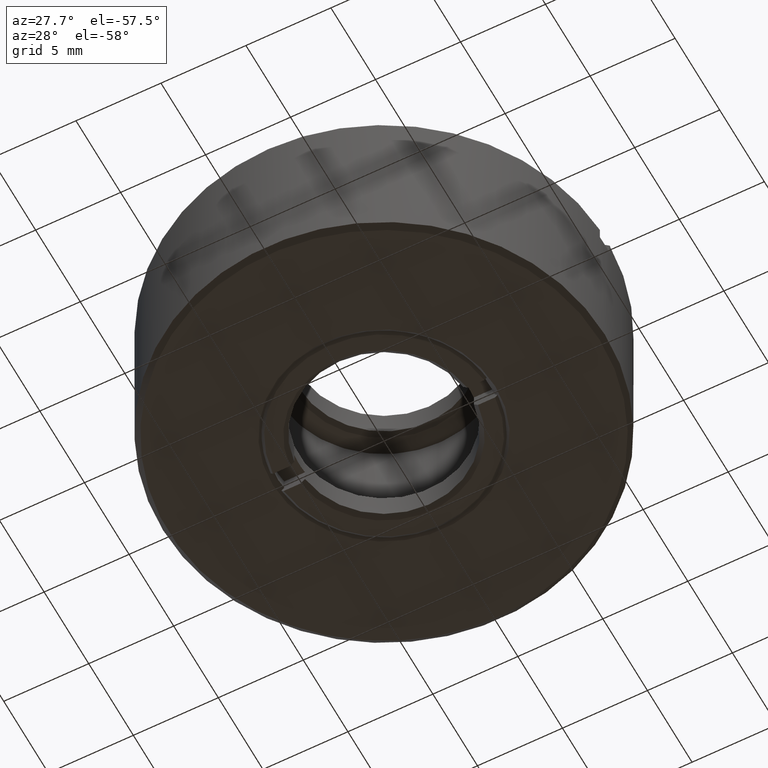
[diagram: clean part render]
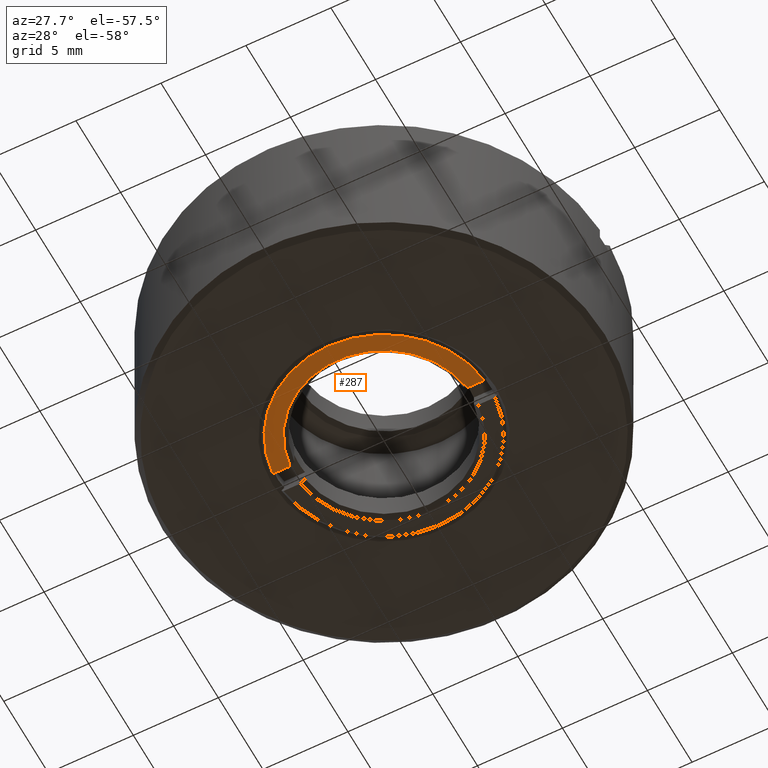
[diagram: same view with one face highlighted and labeled with its STEP entity id]
A machine part, auxiliary view. The second image highlights one B-rep face of the part: STEP entity #287.
In plain terms, the highlighted planar face has unit normal (0, 0, -1).
Its self-contained STEP definition (entity closure, byte-faithful):
#5 = DIRECTION ( 'NONE',  ( 0.000000000000000000, 0.000000000000000000, -1.000000000000000000 ) ) ;
#47 = DIRECTION ( 'NONE',  ( 1.000000000000000000, -0.000000000000000000, -0.000000000000000000 ) ) ;
#93 = DIRECTION ( 'NONE',  ( 0.000000000000000000, 0.000000000000000000, 1.000000000000000000 ) ) ;
#113 = DIRECTION ( 'NONE',  ( 1.000000000000000000, -0.000000000000000000, -0.000000000000000000 ) ) ;
#135 = CIRCLE ( 'NONE', #392, 5.249999999932697392 ) ;
#152 = LINE ( 'NONE', #648, #545 ) ;
#189 = EDGE_CURVE ( 'NONE', #338, #824, #473, .T. ) ;
#239 = CARTESIAN_POINT ( 'NONE',  ( 5.215601595170126892, -0.5999999999999998668, -4.999999999966760811 ) ) ;
#287 = ADVANCED_FACE ( 'NONE', ( #1367 ), #871, .T. ) ;
#336 = VERTEX_POINT ( 'NONE', #481 ) ;
#338 = VERTEX_POINT ( 'NONE', #968 ) ;
#348 = VERTEX_POINT ( 'NONE', #239 ) ;
#350 = EDGE_CURVE ( 'NONE', #336, #348, #135, .T. ) ;
#392 = AXIS2_PLACEMENT_3D ( 'NONE', #991, #1235, #582 ) ;
#473 = CIRCLE ( 'NONE', #729, 6.250000000022736479 ) ;
#481 = CARTESIAN_POINT ( 'NONE',  ( -5.215601595172505434, -0.5999999999999998668, -4.999999999969124254 ) ) ;
#545 = VECTOR ( 'NONE', #47, 1000.000000000000000 ) ;
#582 = DIRECTION ( 'NONE',  ( -1.000000000000000000, 0.000000000000000000, 0.000000000000000000 ) ) ;
#648 = CARTESIAN_POINT ( 'NONE',  ( 0.000000000000000000, -0.5999999999999998668, -5.000000000000000000 ) ) ;
#670 = ORIENTED_EDGE ( 'NONE', *, *, #189, .F. ) ;
#688 = CARTESIAN_POINT ( 'NONE',  ( 6.221133337279987074, -0.5999999999999998668, -5.000000000005422329 ) ) ;
#718 = EDGE_CURVE ( 'NONE', #338, #336, #152, .T. ) ;
#729 = AXIS2_PLACEMENT_3D ( 'NONE', #1195, #93, #803 ) ;
#803 = DIRECTION ( 'NONE',  ( 1.000000000000000000, 0.000000000000000000, 0.000000000000000000 ) ) ;
#824 = VERTEX_POINT ( 'NONE', #688 ) ;
#857 = AXIS2_PLACEMENT_3D ( 'NONE', #1111, #5, #982 ) ;
#871 = PLANE ( 'NONE',  #857 ) ;
#899 = EDGE_CURVE ( 'NONE', #348, #824, #1598, .T. ) ;
#968 = CARTESIAN_POINT ( 'NONE',  ( -6.221133337279921349, -0.5999999999999998668, -5.000000000005488054 ) ) ;
#982 = DIRECTION ( 'NONE',  ( -1.000000000000000000, 0.000000000000000000, 0.000000000000000000 ) ) ;
#991 = CARTESIAN_POINT ( 'NONE',  ( 0.000000000000000000, 0.000000000000000000, -4.999999999943156581 ) ) ;
#1097 = ORIENTED_EDGE ( 'NONE', *, *, #899, .T. ) ;
#1111 = CARTESIAN_POINT ( 'NONE',  ( 0.000000000000000000, 0.000000000000000000, -5.000000000000000000 ) ) ;
#1195 = CARTESIAN_POINT ( 'NONE',  ( 0.000000000000000000, 0.000000000000000000, -5.000000000000000888 ) ) ;
#1235 = DIRECTION ( 'NONE',  ( -0.000000000000000000, -0.000000000000000000, 1.000000000000000000 ) ) ;
#1306 = ORIENTED_EDGE ( 'NONE', *, *, #718, .T. ) ;
#1341 = CARTESIAN_POINT ( 'NONE',  ( 0.000000000000000000, -0.5999999999999998668, -5.000000000000000000 ) ) ;
#1367 = FACE_OUTER_BOUND ( 'NONE', #1407, .T. ) ;
#1375 = VECTOR ( 'NONE', #113, 1000.000000000000000 ) ;
#1407 = EDGE_LOOP ( 'NONE', ( #1306, #1573, #1097, #670 ) ) ;
#1573 = ORIENTED_EDGE ( 'NONE', *, *, #350, .T. ) ;
#1598 = LINE ( 'NONE', #1341, #1375 ) ;